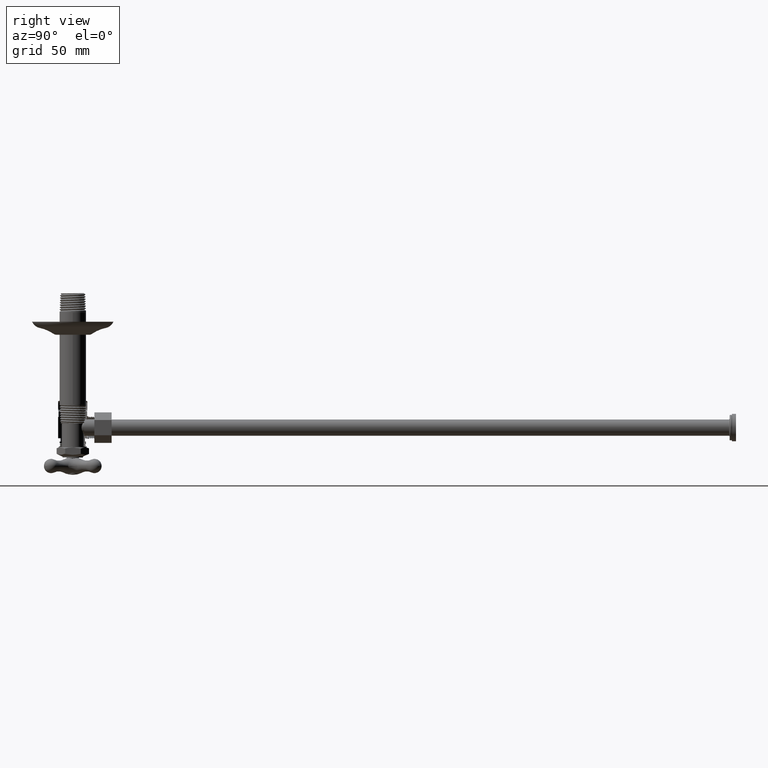
[diagram: clean part render]
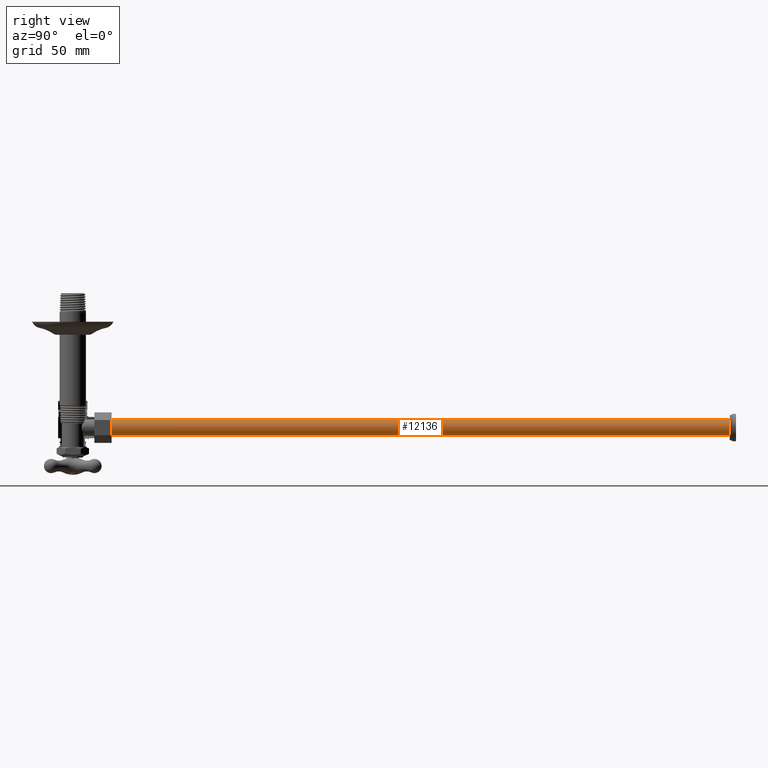
[diagram: same view with one face highlighted and labeled with its STEP entity id]
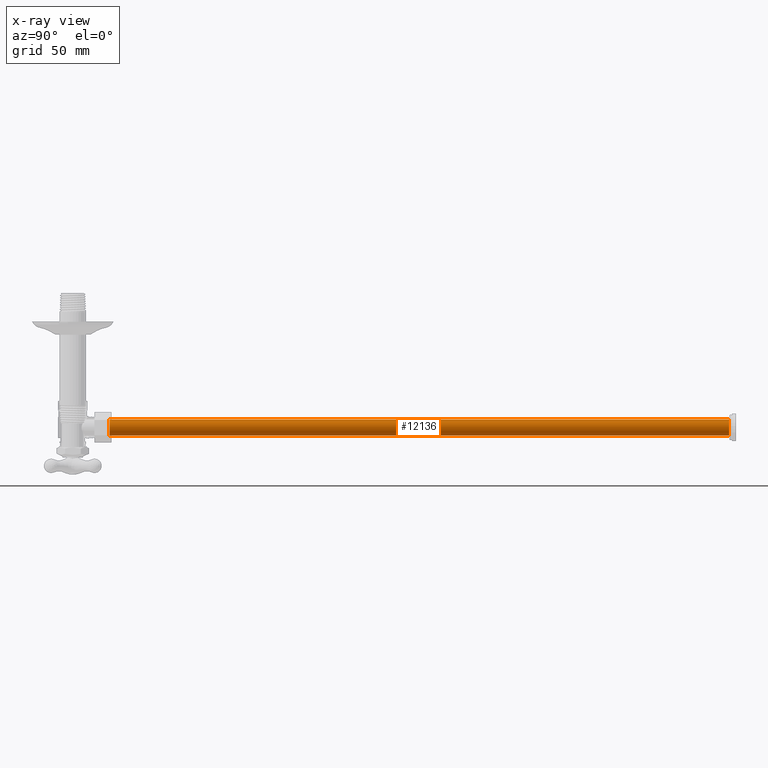
[diagram: x-ray of the same camera — body ghosted, the highlighted face saturated]
A machine part, right view. The second image highlights one B-rep face of the part: STEP entity #12136.
The next image is the same camera in x-ray: the body ghosted, the highlighted face saturated — about 0% of this face is hidden behind the body in this view.
In plain terms, the highlighted cylindrical surface (edge-blend (fillet) strip) has radius 6.35 mm, axis along (0, -1, 0).
Its self-contained STEP definition (entity closure, byte-faithful):
#1647=CARTESIAN_POINT('',(0.E0,1.1325E0,0.E0));
#1648=DIRECTION('',(0.E0,-1.E0,0.E0));
#1649=DIRECTION('',(-2.068231071099E-13,0.E0,-1.E0));
#1650=AXIS2_PLACEMENT_3D('',#1647,#1648,#1649);
#1716=DIRECTION('',(4.140745655009E-11,1.E0,0.E0));
#1717=VECTOR('',#1716,1.90075E1);
#1718=CARTESIAN_POINT('',(5.148373217263E-14,1.1325E0,2.5E-1));
#1719=LINE('',#1718,#1717);
#1720=DIRECTION('',(4.140745124603E-11,-1.E0,0.E0));
#1721=VECTOR('',#1720,1.90075E1);
#1722=CARTESIAN_POINT('',(-7.871038251303E-10,2.014E1,-2.5E-1));
#1723=LINE('',#1722,#1721);
#1755=CARTESIAN_POINT('',(0.E0,2.014E1,0.E0));
#1756=DIRECTION('',(0.E0,1.E0,0.E0));
#1757=DIRECTION('',(2.059349286905E-13,0.E0,1.E0));
#1758=AXIS2_PLACEMENT_3D('',#1755,#1756,#1757);
#8608=CARTESIAN_POINT('',(0.E0,2.014E1,-2.5E-1));
#8609=CARTESIAN_POINT('',(5.137270987016E-14,2.014E1,2.5E-1));
#8610=VERTEX_POINT('',#8608);
#8611=VERTEX_POINT('',#8609);
#9963=CARTESIAN_POINT('',(5.148373217263E-14,1.1325E0,2.5E-1));
#9964=CARTESIAN_POINT('',(-5.173639294753E-14,1.1325E0,-2.5E-1));
#9965=VERTEX_POINT('',#9963);
#9966=VERTEX_POINT('',#9964);
#12124=CARTESIAN_POINT('',(0.E0,2.05358E1,0.E0));
#12125=DIRECTION('',(0.E0,-1.E0,0.E0));
#12126=DIRECTION('',(0.E0,0.E0,-1.E0));
#12127=AXIS2_PLACEMENT_3D('',#12124,#12125,#12126);
#12128=CYLINDRICAL_SURFACE('',#12127,2.5E-1);
#12129=ORIENTED_EDGE('',*,*,#12020,.T.);
#12130=ORIENTED_EDGE('',*,*,#11982,.T.);
#12132=ORIENTED_EDGE('',*,*,#12131,.T.);
#12133=ORIENTED_EDGE('',*,*,#11978,.T.);
#12134=EDGE_LOOP('',(#12129,#12130,#12132,#12133));
#12135=FACE_OUTER_BOUND('',#12134,.F.);
#12136=ADVANCED_FACE('',(#12135),#12128,.T.);
#1651=CIRCLE('',#1650,2.5E-1);
#1759=CIRCLE('',#1758,2.5E-1);
#11978=EDGE_CURVE('',#8610,#9966,#1723,.T.);
#11982=EDGE_CURVE('',#9965,#8611,#1719,.T.);
#12020=EDGE_CURVE('',#9966,#9965,#1651,.T.);
#12131=EDGE_CURVE('',#8611,#8610,#1759,.T.);